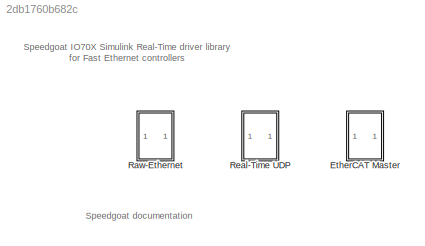
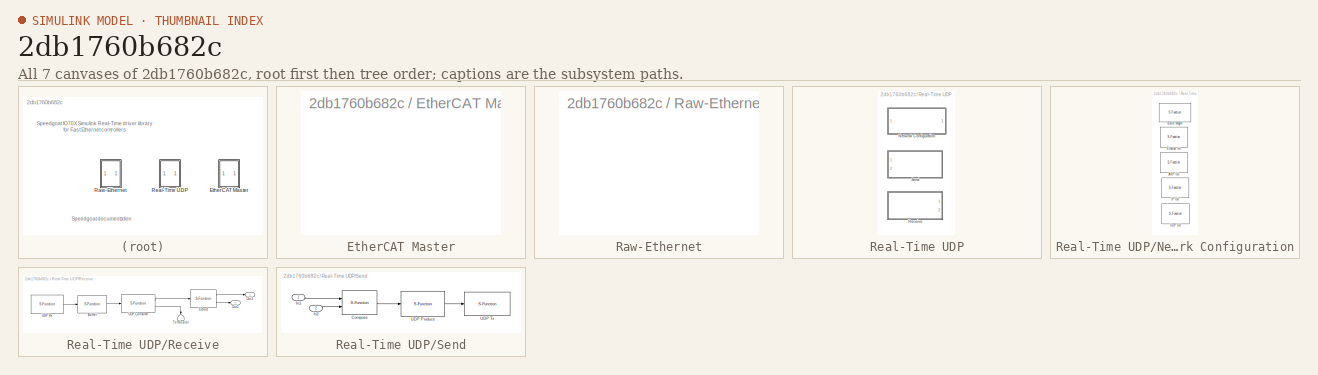
[diagram: thumbnail index - all 7 canvases of the model, root first then tree order]
MODEL slx_2db1760b682c
KIND library
CONFIG AbsTol = auto
CONFIG FixedStep = auto
CONFIG MaxStep = auto
CONFIG MinStep = auto
CONFIG RelTol = 1e-3
CONFIG SampleTimeConstraint = Unconstrained
CONFIG Solver = ode45
CONFIG SolverMode = Auto
CONFIG SolverName = ode45
CONFIG StartTime = 0.0
CONFIG StopTime = 10.0
BLOCK [SubSystem] EtherCAT Master
  OpenFcn = xpcethercatlib
  Ports = []
  RequestExecContextInheritance = off
BLOCK [SubSystem] Raw-Ethernet
  OpenFcn = xpcethernetlib
  Ports = []
  RequestExecContextInheritance = off
BLOCK [SubSystem] Real-Time UDP
  Ports = []
  RequestExecContextInheritance = off
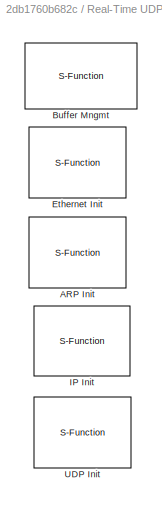
BLOCK [SubSystem] Real-Time UDP/Network Configuration
  Ports = []
  RequestExecContextInheritance = off
BLOCK [S-Function] Real-Time UDP/Network Configuration/ARP Init 
  EnableBusSupport = off
  FunctionName = xpcdebugarpinit
  Parameters = Stats, Interface, IpAddress, SubnetMask, Gateway, EthernetId, Flags, BlockId, Retry, Timeout, Expiration, StaticAddressListIp, StaticAddressListMac, DiscoveryList, MulticastList, SampleTime
  Ports = []
  Priority = 0
BLOCK [S-Function] Real-Time UDP/Network Configuration/Buffer Mngmt 
  EnableBusSupport = off
  FunctionName = xpcnb
  Parameters = pool_sizes, SampleTime, ShowTune
  Ports = []
  Priority = -1
BLOCK [S-Function] Real-Time UDP/Network Configuration/Ethernet Init 
  EnableBusSupport = off
  FunctionName = xpcetherinit
  Parameters = ID, Driver, Bus, Slot, VendorID, DeviceID, AddressSource, mac, TxSA, RxPromiscuous, RxBad, RxShort, MaxMTU, TxThreshold, TxBuffers, RxBuffers, ShowTune, numMulti, multicast,   NumRxBlks, SampleTime
  Ports = []
  Priority = -1
BLOCK [S-Function] Real-Time UDP/Network Configuration/IP Init 
  EnableBusSupport = off
  FunctionName = xpcdebugipinit
  Parameters = Stats, Group, ArpId, IpAddress, SubnetMask, DefaultGateway, DefaultInterface, Flags, ToS, StartingId, TTL, SampleTime
  Ports = []
  Priority = 1
BLOCK [S-Function] Real-Time UDP/Network Configuration/UDP Init 
  EnableBusSupport = off
  FunctionName = xpcdebugudpinit
  Parameters = Stats, Group, StartingPort, Flags, SampleTime
  Ports = []
  Priority = 2
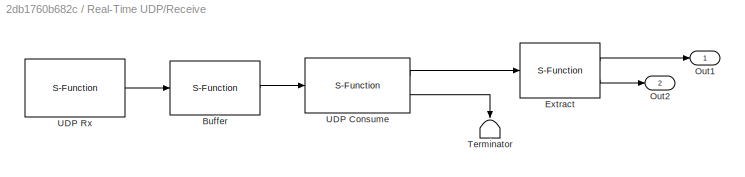
BLOCK [SubSystem] Real-Time UDP/Receive
  Ports = [0, 2]
  RequestExecContextInheritance = off
BLOCK [S-Function] Real-Time UDP/Receive/Buffer 
  EnableBusSupport = off
  FunctionName = xpcnbbuffer
  Parameters = chainSize, bufferSize, Threshold
  Ports = [1, 1]
BLOCK [S-Function] Real-Time UDP/Receive/Extract 
  EnableBusSupport = off
  FunctionName = xpcnbextract
  Parameters = packetSize
  Ports = [1, 2]
BLOCK [Outport] Real-Time UDP/Receive/Out1
  IconDisplay = Port number
  OutDataTypeStr = uint8
BLOCK [Outport] Real-Time UDP/Receive/Out2
  IconDisplay = Port number
  OutDataTypeStr = double
  Port = 2
BLOCK [Terminator] Real-Time UDP/Receive/Terminator
BLOCK [S-Function] Real-Time UDP/Receive/UDP Consume 
  EnableBusSupport = off
  FunctionName = xpcudpconsume
  Parameters = Group, VectorSize, SampleTime
  Ports = [1, 2]
BLOCK [S-Function] Real-Time UDP/Receive/UDP Rx 
  EnableBusSupport = off
  FunctionName = xpcudprx
  Parameters = Group, SourceAddress, sip, LocalPort, lup, SampleTime
  Ports = [0, 1]
  Priority = 5
BLOCK [SubSystem] Real-Time UDP/Send
  Ports = [2]
  RequestExecContextInheritance = off
BLOCK [S-Function] Real-Time UDP/Send/Compose 
  EnableBusSupport = off
  FunctionName = xpcnbcompose
  Ports = [2, 1]
BLOCK [Inport] Real-Time UDP/Send/In1
  IconDisplay = Port number
  OutDataTypeStr = uint8
BLOCK [Inport] Real-Time UDP/Send/In2
  IconDisplay = Port number
  OutDataTypeStr = double
  Port = 2
BLOCK [S-Function] Real-Time UDP/Send/UDP Produce 
  EnableBusSupport = off
  FunctionName = xpcudpproduce
  Parameters = Group, SrcIp, sip, DstIp, dip, LocPort, lup, RemPort, rup, SampleTime
  Ports = [1, 1]
  Priority = 5
BLOCK [S-Function] Real-Time UDP/Send/UDP Tx 
  EnableBusSupport = off
  FunctionName = xpcudptx
  Parameters = Group, TTL, ToS, SampleTime
  Ports = [1]
  Priority = 5
ANNOTATION (root): Speedgoat IO70X Simulink Real-Time driver library for Fast Ethernet controllers
ANNOTATION (root): Speedgoat documentation
LINE Real-Time UDP/Receive/Buffer :1 -> Real-Time UDP/Receive/UDP Consume :1
LINE Real-Time UDP/Receive/Extract :1 -> Real-Time UDP/Receive/Out1:1
LINE Real-Time UDP/Receive/Extract :2 -> Real-Time UDP/Receive/Out2:1
LINE Real-Time UDP/Receive/UDP Consume :1 -> Real-Time UDP/Receive/Extract :1
LINE Real-Time UDP/Receive/UDP Consume :2 -> Real-Time UDP/Receive/Terminator:1
LINE Real-Time UDP/Receive/UDP Rx :1 -> Real-Time UDP/Receive/Buffer :1
LINE Real-Time UDP/Send/Compose :1 -> Real-Time UDP/Send/UDP Produce :1
LINE Real-Time UDP/Send/In1:1 -> Real-Time UDP/Send/Compose :1
LINE Real-Time UDP/Send/In2:1 -> Real-Time UDP/Send/Compose :2
LINE Real-Time UDP/Send/UDP Produce :1 -> Real-Time UDP/Send/UDP Tx :1
